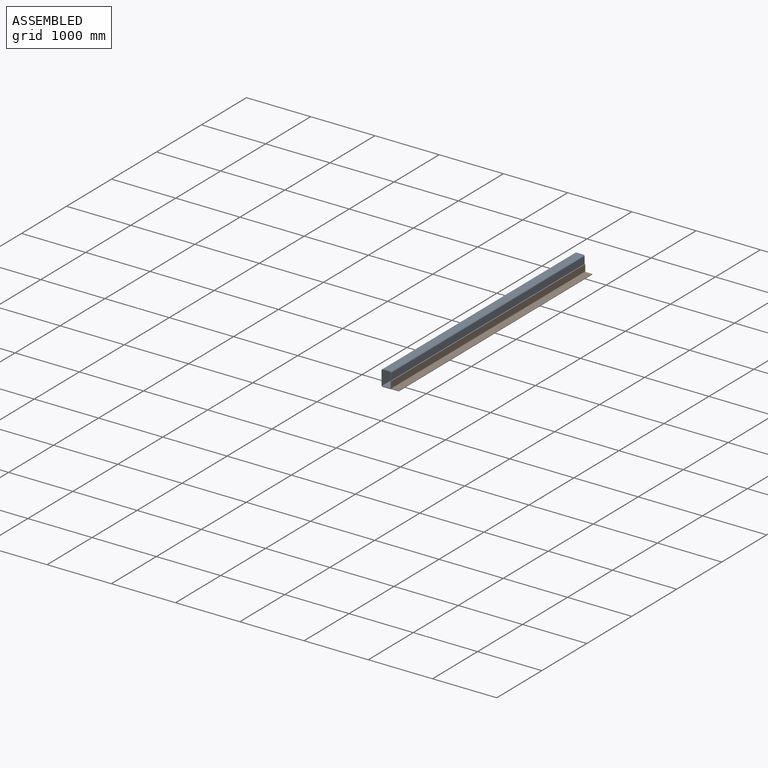
[diagram: assembled view]
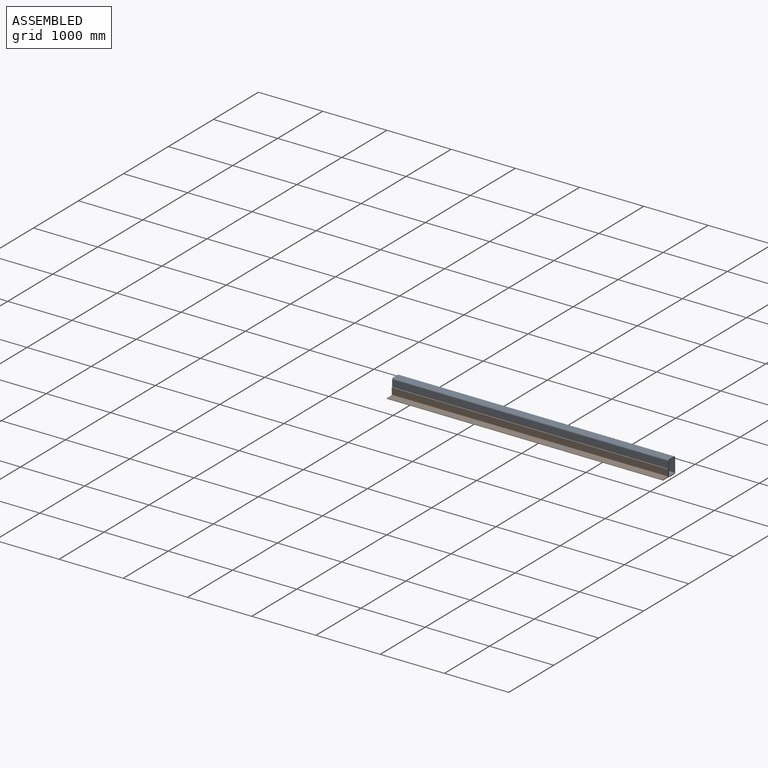
[diagram: assembled view, second angle]
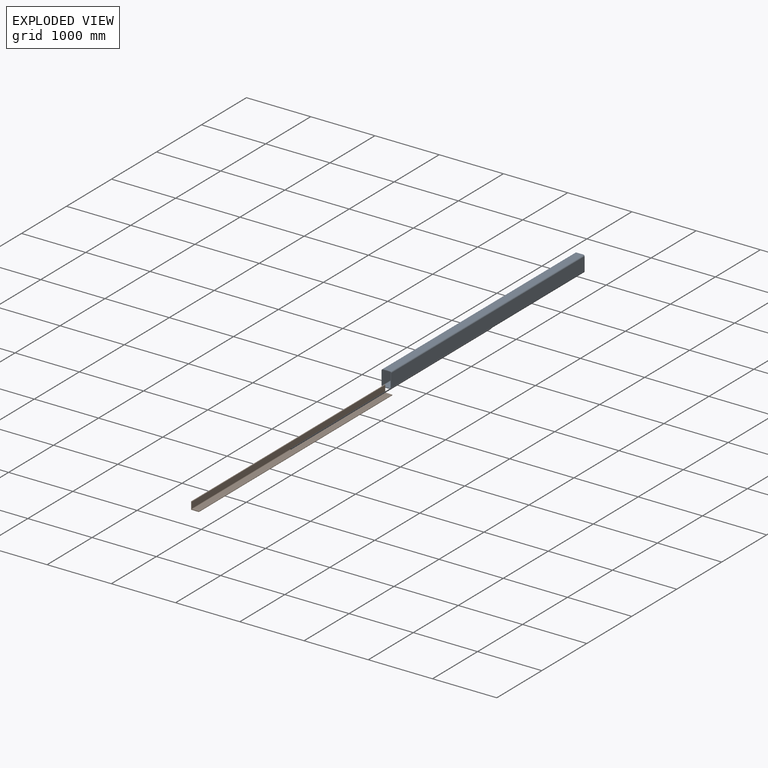
[diagram: exploded view]
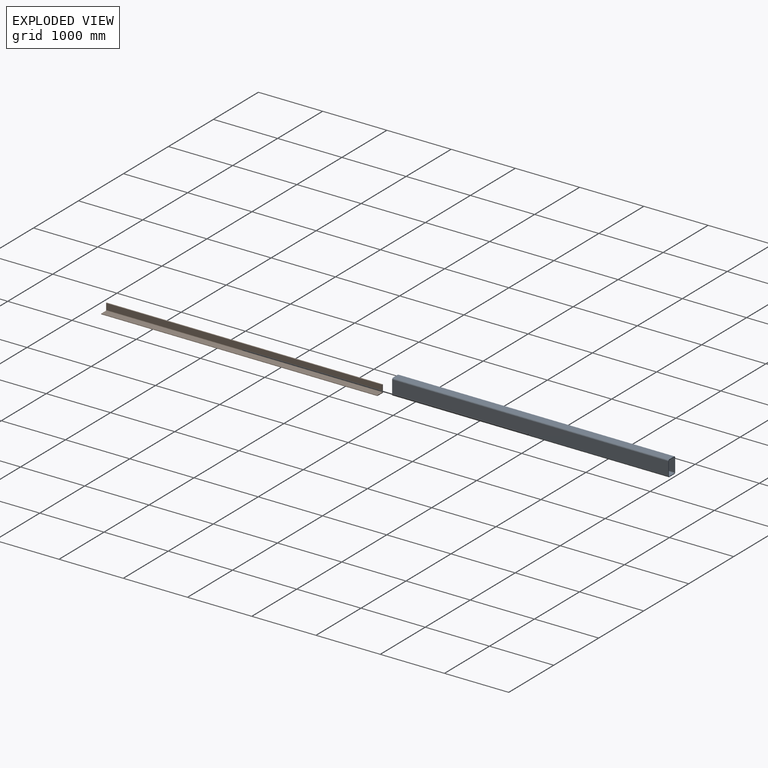
[diagram: exploded view, second angle]
ASSEMBLY  parts=2 mates=2
PART A: 18 faces, bbox 150x4300x250 mm
  f0: cylinder r=15mm len=4300mm, axis (0,1,0), area 101316.4mm2, adj f1,f7,f8,f9
  f1: plane 4300x205mm, normal (1,0,0), area 881500mm2, adj f0,f2,f8,f9
  f2: cylinder r=10mm len=4300mm, axis (0,1,0), area 67544.4mm2, adj f1,f3,f8,f9
  f3: plane 4300x110mm, normal (0,0,1), area 473000mm2, adj f2,f4,f8,f9
  f4: cylinder r=10mm len=4300mm, axis (0,1,0), area 67544.4mm2, adj f3,f5,f8,f9
  f5: plane 4300x210mm, normal (-1,0,0), area 903000mm2, adj f4,f6,f8,f9
  f6: cylinder r=10mm len=4300mm, axis (0,1,0), area 67544.4mm2, adj f5,f7,f8,f9
  f7: plane 4300x105mm, normal (0,0,-1), area 451500mm2, adj f0,f6,f8,f9
  f8: plane 250x150mm, normal (0,-1,0), area 7321mm2, adj f0,f1,f2,f3,f4,f5,f6,f7
  f9: plane 250x150mm, normal (0,1,0), area 7321mm2, adj f0,f1,f2,f3,f4,f5,f6,f7
  f10: cylinder r=20mm len=4300mm, axis (0,1,0), area 135088.3mm2, adj f8,f9,f11,f17
  f11: plane 4300x110mm, normal (0,0,-1), area 473000mm2, adj f8,f9,f10,f12
  f12: cylinder r=20mm len=4300mm, axis (0,1,0), area 135088.3mm2, adj f8,f9,f11,f13
  f13: plane 4300x205mm, normal (-1,0,0), area 881500mm2, adj f8,f9,f12,f14
  f14: cylinder r=25mm len=4300mm, axis (0,1,0), area 168860.8mm2, adj f8,f9,f13,f15
  f15: plane 4300x105mm, normal (0,0,1), area 451500mm2, adj f8,f9,f14,f16
  f16: cylinder r=20mm len=4300mm, axis (0,1,0), area 135088.3mm2, adj f8,f9,f15,f17
  f17: plane 4300x210mm, normal (1,0,0), area 903000mm2, adj f8,f9,f10,f16
PART B: 11 faces, bbox 120x4300x120 mm
  f0: plane 4300x120mm, normal (-1,0,0), area 516000mm2, adj f1,f5,f6,f7
  f1: plane 4300x120mm, normal (0,0,-1), area 516000mm2, adj f0,f2,f6,f7
  f2: plane 4300x5mm, normal (1,0,0), area 21500mm2, adj f1,f6,f7,f10
  f3: plane 4300x95mm, normal (0,0,1), area 408500mm2, adj f6,f7,f9,f10
  f4: plane 4300x95mm, normal (1,0,0), area 408500mm2, adj f6,f7,f8,f9
  f5: plane 4300x5mm, normal (0,0,1), area 21500mm2, adj f0,f6,f7,f8
  f6: plane 120x120mm, normal (0,1,0), area 2310.7mm2, adj f0,f1,f2,f3,f4,f5,f8,f9
  f7: plane 120x120mm, normal (0,-1,0), area 2310.7mm2, adj f0,f1,f2,f3,f4,f5,f8,f9
  f8: cylinder r=5mm len=4300mm, axis (0,-1,0), area 33772.1mm2, adj f4,f5,f6,f7
  f9: cylinder r=10mm len=4300mm, axis (0,1,0), area 67544.2mm2, adj f3,f4,f6,f7
  f10: cylinder r=5mm len=4300mm, axis (0,-1,0), area 33772.1mm2, adj f2,f3,f6,f7
PLACE A t=(-433.9,-266.93,-27.73)mm
PLACE B t=(-358.9,-266.93,-147.73)mm
MATE slider A.f8 <-> B.f7  axis (0,-1,0) through (-358.9,-266.93,-27.73)mm
MATE parallel A.f8 <-> B.f7  axis (0,-1,0) through (-358.9,-266.93,-132.73)mm
